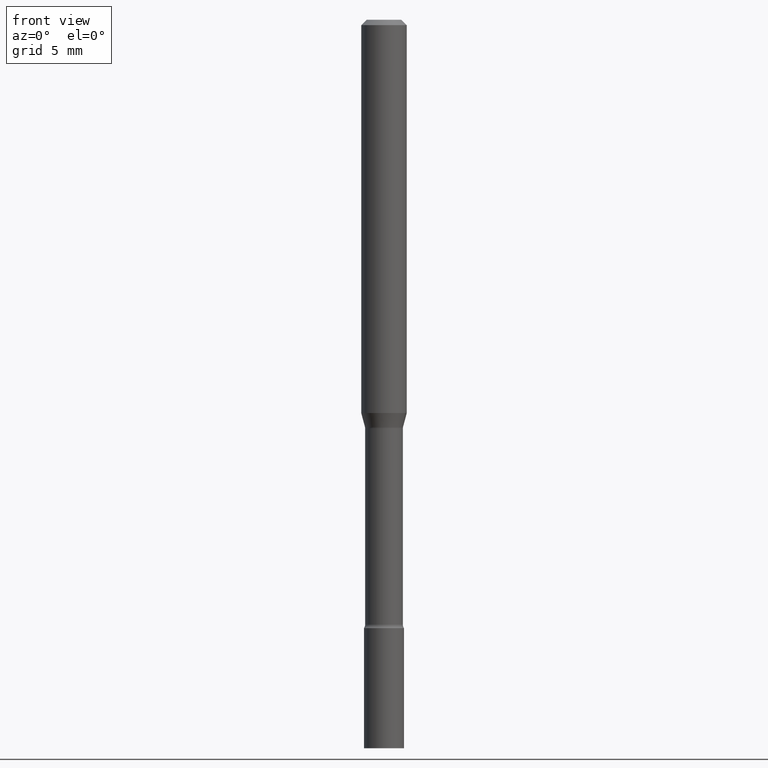
[diagram: clean part render]
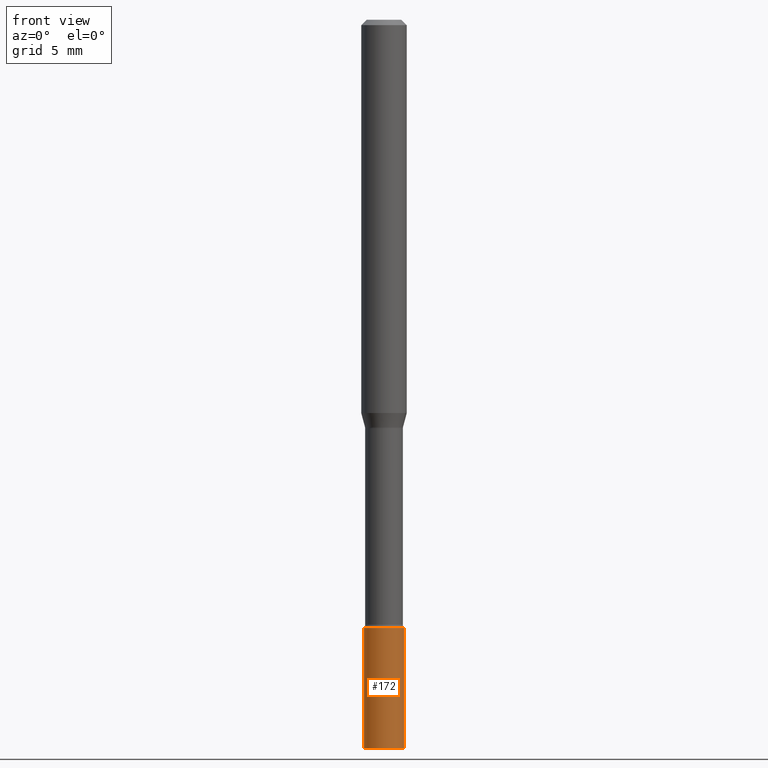
[diagram: same view with one face highlighted and labeled with its STEP entity id]
A machine part, front view. The second image highlights one B-rep face of the part: STEP entity #172.
In plain terms, the highlighted cylindrical surface (edge-blend (fillet) strip) has radius 1.397 mm, axis along (-0, 0, 1).
Its self-contained STEP definition (entity closure, byte-faithful):
#22 = ORIENTED_EDGE ( 'NONE', *, *, #290, .F. ) ;
#30 = LINE ( 'NONE', #115, #463 ) ;
#61 = VERTEX_POINT ( 'NONE', #376 ) ;
#63 = DIRECTION ( 'NONE',  ( -2.445468806185136877E-29, 3.491481338843145188E-15, 1.000000000000000000 ) ) ;
#84 = ORIENTED_EDGE ( 'NONE', *, *, #492, .T. ) ;
#88 = CIRCLE ( 'NONE', #397, 0.05500000000000000028 ) ;
#111 = CARTESIAN_POINT ( 'NONE',  ( 0.05500000000000000028, -6.214836783140797252E-15, -1.669999999999999929 ) ) ;
#115 = CARTESIAN_POINT ( 'NONE',  ( 0.05500000000000000028, -3.840629472727446888E-16, 2.681897226687764826E-30 ) ) ;
#118 = DIRECTION ( 'NONE',  ( 1.000000000000000000, -6.982962677686262766E-15, 0.000000000000000000 ) ) ;
#133 = EDGE_LOOP ( 'NONE', ( #202, #84, #366, #22 ) ) ;
#153 = DIRECTION ( 'NONE',  ( -2.445468806185136877E-29, 3.491481338843145188E-15, 1.000000000000000000 ) ) ;
#158 = DIRECTION ( 'NONE',  ( -2.445468806185136597E-29, 3.491481338843145583E-15, 1.000000000000000000 ) ) ;
#161 = AXIS2_PLACEMENT_3D ( 'NONE', #284, #450, #200 ) ;
#163 = CARTESIAN_POINT ( 'NONE',  ( 4.890937612370273194E-29, -6.982962677686291165E-15, -2.000000000000000000 ) ) ;
#172 = ADVANCED_FACE ( 'NONE', ( #447 ), #240, .T. ) ;
#177 = LINE ( 'NONE', #241, #224 ) ;
#190 = DIRECTION ( 'NONE',  ( 1.000000000000000000, -6.982962677686262766E-15, 0.000000000000000000 ) ) ;
#200 = DIRECTION ( 'NONE',  ( 1.000000000000000000, -6.982962677686266711E-15, 4.876176775795935793E-29 ) ) ;
#202 = ORIENTED_EDGE ( 'NONE', *, *, #424, .F. ) ;
#224 = VECTOR ( 'NONE', #153, 39.37007874015748143 ) ;
#234 = CARTESIAN_POINT ( 'NONE',  ( -0.05500000000000000028, -6.016069752109117450E-15, -1.669999999999999929 ) ) ;
#240 = CYLINDRICAL_SURFACE ( 'NONE', #161, 0.05500000000000000028 ) ;
#241 = CARTESIAN_POINT ( 'NONE',  ( -0.05500000000000000028, 3.907985046680551042E-16, -2.705414299640198362E-30 ) ) ;
#243 = VERTEX_POINT ( 'NONE', #234 ) ;
#284 = CARTESIAN_POINT ( 'NONE',  ( 0.000000000000000000, 0.000000000000000000, 0.000000000000000000 ) ) ;
#290 = EDGE_CURVE ( 'NONE', #243, #370, #88, .T. ) ;
#298 = AXIS2_PLACEMENT_3D ( 'NONE', #163, #475, #118 ) ;
#300 = EDGE_CURVE ( 'NONE', #319, #370, #30, .T. ) ;
#319 = VERTEX_POINT ( 'NONE', #355 ) ;
#344 = CARTESIAN_POINT ( 'NONE',  ( 4.083932906329177803E-29, -5.830773835868053056E-15, -1.669999999999999929 ) ) ;
#355 = CARTESIAN_POINT ( 'NONE',  ( 0.05500000000000000028, -7.367025624959035361E-15, -2.000000000000000000 ) ) ;
#366 = ORIENTED_EDGE ( 'NONE', *, *, #300, .T. ) ;
#370 = VERTEX_POINT ( 'NONE', #111 ) ;
#376 = CARTESIAN_POINT ( 'NONE',  ( -0.05500000000000000028, -6.016069752109117450E-15, -2.000000000000000000 ) ) ;
#378 = CIRCLE ( 'NONE', #298, 0.05500000000000000028 ) ;
#397 = AXIS2_PLACEMENT_3D ( 'NONE', #344, #158, #190 ) ;
#424 = EDGE_CURVE ( 'NONE', #61, #243, #177, .T. ) ;
#447 = FACE_OUTER_BOUND ( 'NONE', #133, .T. ) ;
#450 = DIRECTION ( 'NONE',  ( -2.445468806185136597E-29, 3.491481338843145583E-15, 1.000000000000000000 ) ) ;
#463 = VECTOR ( 'NONE', #63, 39.37007874015748143 ) ;
#475 = DIRECTION ( 'NONE',  ( -2.445468806185136597E-29, 3.491481338843145583E-15, 1.000000000000000000 ) ) ;
#492 = EDGE_CURVE ( 'NONE', #61, #319, #378, .T. ) ;